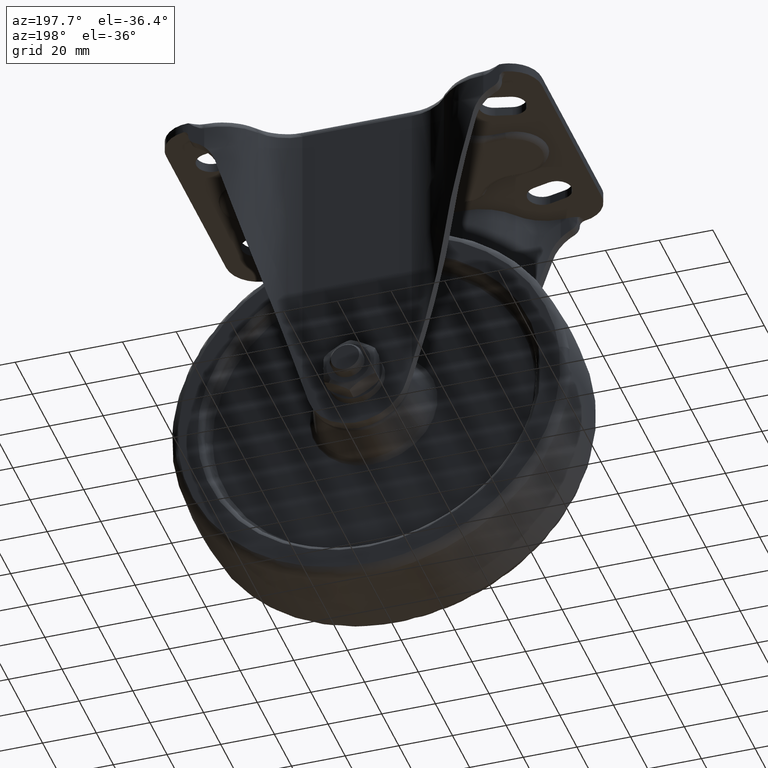
[diagram: clean part render]
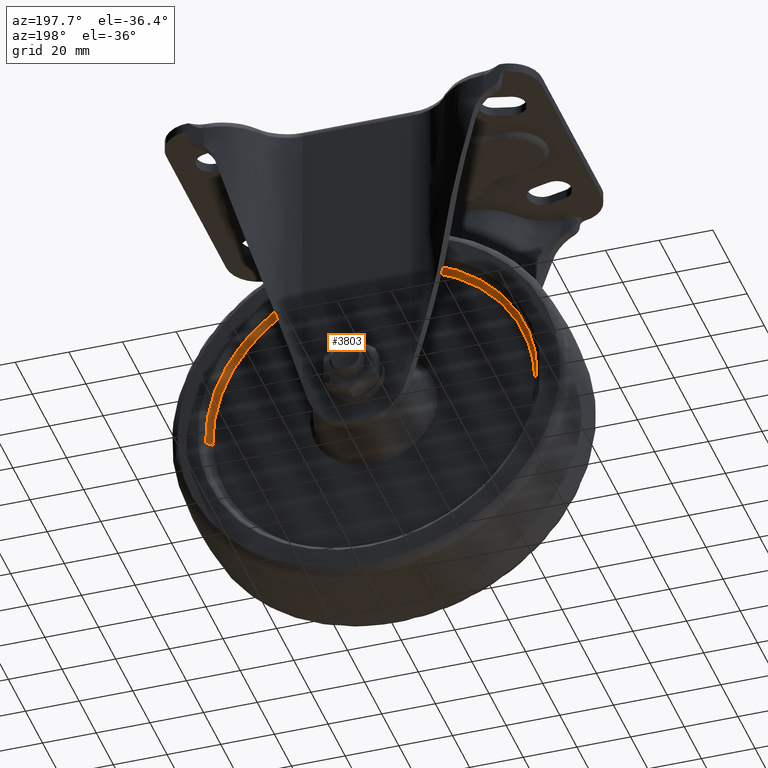
[diagram: same view with one face highlighted and labeled with its STEP entity id]
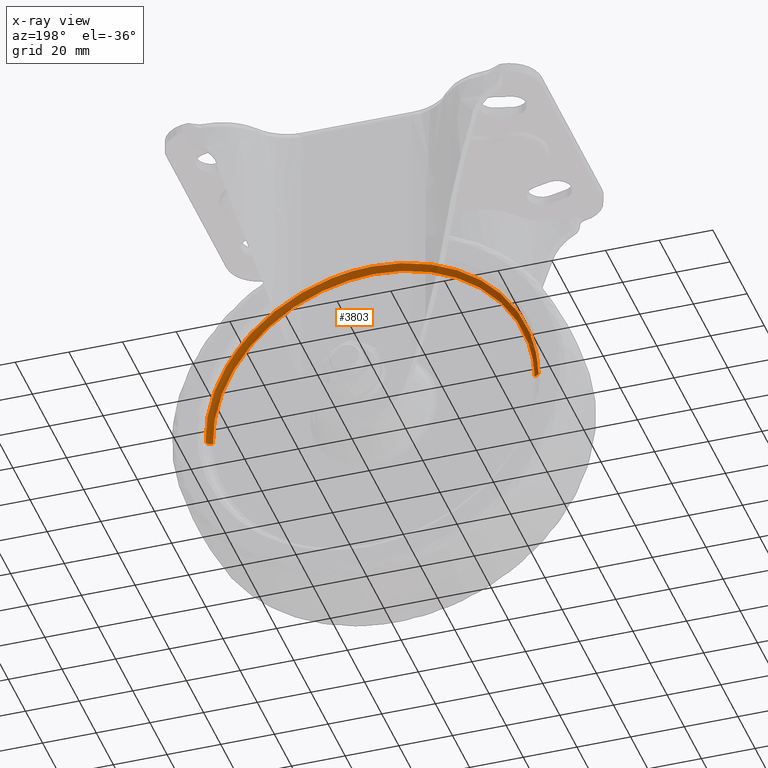
[diagram: x-ray of the same camera — body ghosted, the highlighted face saturated]
A machine part, auxiliary view. The second image highlights one B-rep face of the part: STEP entity #3803.
The next image is the same camera in x-ray: the body ghosted, the highlighted face saturated — about 3% of this face is hidden behind the body in this view.
In plain terms, the highlighted face is a freeform B-spline surface patch.
Its self-contained STEP definition (entity closure, byte-faithful):
#3506=CARTESIAN_POINT('',(44.973201963301541,13.999999999430560,42.677956427521544));
#3507=VERTEX_POINT('',#3506);
#3508=CARTESIAN_POINT('',(0.0,14.0,61.999970000000353));
#3509=VERTEX_POINT('',#3508);
#3510=CARTESIAN_POINT('',(44.973201963301541,13.999999999430559,42.677956427521529));
#3511=CARTESIAN_POINT('',(26.637297309651874,13.999999999766032,61.999970000000353));
#3512=CARTESIAN_POINT('',(0.0,14.0,61.999970000000353));
#3520=(BOUNDED_CURVE()B_SPLINE_CURVE(2,(#3510,#3511,#3512),.UNSPECIFIED.,.F.,.U.)B_SPLINE_CURVE_WITH_KNOTS((3,3),(0.371049520148539,0.500000000000000),.UNSPECIFIED.)CURVE()GEOMETRIC_REPRESENTATION_ITEM()RATIONAL_B_SPLINE_CURVE((0.853699661851557,0.848925115555066,1.0))REPRESENTATION_ITEM(''));
#3521=EDGE_CURVE('',#3507,#3509,#3520,.T.);
#3523=CARTESIAN_POINT('',(-61.980404740300358,13.999999998883110,1.558050540599163));
#3524=VERTEX_POINT('',#3523);
#3525=CARTESIAN_POINT('',(0.0,14.0,61.999970000000353));
#3526=CARTESIAN_POINT('',(-60.461013695470321,13.999999999441554,61.999970000000360));
#3527=CARTESIAN_POINT('',(-61.980404740300358,13.999999998883114,1.558050540599163));
#3535=(BOUNDED_CURVE()B_SPLINE_CURVE(2,(#3525,#3526,#3527),.UNSPECIFIED.,.F.,.U.)B_SPLINE_CURVE_WITH_KNOTS((3,3),(0.500000000000000,0.745579891769628),.UNSPECIFIED.)CURVE()GEOMETRIC_REPRESENTATION_ITEM()RATIONAL_B_SPLINE_CURVE((1.0,0.712285260094937,0.989826157681171))REPRESENTATION_ITEM(''));
#3536=EDGE_CURVE('',#3509,#3524,#3535,.T.);
#3589=CARTESIAN_POINT('',(61.980404740300358,13.999999998883110,-1.558080540598828));
#3590=VERTEX_POINT('',#3589);
#3591=CARTESIAN_POINT('',(61.980404740300365,13.999999998883110,-1.558080540598828));
#3592=CARTESIAN_POINT('',(61.999985000000187,13.999999998889955,-0.779170803175661));
#3593=CARTESIAN_POINT('',(61.999985000000187,13.999999998896969,-0.000014999999852));
#3594=CARTESIAN_POINT('',(61.999985000000187,13.999999999119762,24.735469315752223));
#3595=CARTESIAN_POINT('',(44.973201963301591,13.999999999430933,42.677956427521586));
#3603=(BOUNDED_CURVE()B_SPLINE_CURVE(2,(#3591,#3592,#3593,#3594,#3595),.UNSPECIFIED.,.F.,.U.)B_SPLINE_CURVE_WITH_KNOTS((3,2,3),(0.245579891769628,0.250000000000000,0.371049520148539),.UNSPECIFIED.)CURVE()GEOMETRIC_REPRESENTATION_ITEM()RATIONAL_B_SPLINE_CURVE((0.989826157681171,0.994821521091610,1.0,0.858181665631482,0.853699661851557))REPRESENTATION_ITEM(''));
#3604=EDGE_CURVE('',#3590,#3507,#3603,.T.);
#3671=CARTESIAN_POINT('',(-59.981036389527461,12.0,1.507790350903680));
#3672=VERTEX_POINT('',#3671);
#3690=CARTESIAN_POINT('',(59.981036389527461,12.0,-1.507820350903378));
#3691=VERTEX_POINT('',#3690);
#3705=CARTESIAN_POINT('',(61.980404740300358,13.999999998883112,-1.558080540598828));
#3706=CARTESIAN_POINT('',(61.980404739177636,12.000000027814881,-1.558080540816879));
#3707=CARTESIAN_POINT('',(59.981036389527461,12.000000000000005,-1.507820350903379));
#3715=(BOUNDED_CURVE()B_SPLINE_CURVE(2,(#3705,#3706,#3707),.UNSPECIFIED.,.F.,.U.)B_SPLINE_CURVE_WITH_KNOTS((3,3),(-1.723441281409801,-0.263586893321516),.UNSPECIFIED.)CURVE()GEOMETRIC_REPRESENTATION_ITEM()RATIONAL_B_SPLINE_CURVE((0.883897566936020,0.626638729877167,0.888510403898612))REPRESENTATION_ITEM(''));
#3716=EDGE_CURVE('',#3590,#3691,#3715,.T.);
#3721=CARTESIAN_POINT('',(-61.980404740300358,13.999999998883110,1.558050540599163));
#3722=CARTESIAN_POINT('',(-61.980404739177658,12.000000027814870,1.558050540817194));
#3723=CARTESIAN_POINT('',(-59.981036389527461,12.0,1.507790350903680));
#3731=(BOUNDED_CURVE()B_SPLINE_CURVE(2,(#3721,#3722,#3723),.UNSPECIFIED.,.F.,.U.)B_SPLINE_CURVE_WITH_KNOTS((3,3),(-1.723441281409802,-0.263586893321510),.UNSPECIFIED.)CURVE()GEOMETRIC_REPRESENTATION_ITEM()RATIONAL_B_SPLINE_CURVE((0.883897566936021,0.626638729877165,0.888510403898614))REPRESENTATION_ITEM(''));
#3732=EDGE_CURVE('',#3524,#3672,#3731,.T.);
#3737=CARTESIAN_POINT('',(61.931983882675361,14.139448369088914,-3.290592107392480));
#3738=CARTESIAN_POINT('',(61.953634560953226,14.139448369088919,-2.429320378025421));
#3739=CARTESIAN_POINT('',(63.533482115396886,14.139448369088925,60.417580670013663));
#3740=CARTESIAN_POINT('',(1.557943222691692,14.139448369088925,61.975523892705340));
#3741=CARTESIAN_POINT('',(-60.417595670013505,14.139448369088925,63.533467115397038));
#3742=CARTESIAN_POINT('',(-61.997443224449228,14.139448369088919,0.686566067673153));
#3743=CARTESIAN_POINT('',(-62.019093902719355,14.139448369088916,-0.174705661385992));
#3744=CARTESIAN_POINT('',(62.092166451935391,11.845328637014562,-3.299102945611532));
#3745=CARTESIAN_POINT('',(62.113873128117014,11.845328637014561,-2.435603599594852));
#3746=CARTESIAN_POINT('',(63.697806843288042,11.845328637014562,60.573846384370064));
#3747=CARTESIAN_POINT('',(1.561972729459063,11.845328637014561,62.135819113829122));
#3748=CARTESIAN_POINT('',(-60.573861384369906,11.845328637014562,63.697791843288172));
#3749=CARTESIAN_POINT('',(-62.157795099532990,11.845328637014562,0.688341859639280));
#3750=CARTESIAN_POINT('',(-62.179501775706868,11.845328637014561,-0.175157486068688));
#3751=CARTESIAN_POINT('',(59.800323143487127,12.004815298900104,-3.177332470136410));
#3752=CARTESIAN_POINT('',(59.821228618754063,12.004815298900104,-2.345705183207084));
#3753=CARTESIAN_POINT('',(61.346698793456575,12.004815298900102,58.338044240341077));
#3754=CARTESIAN_POINT('',(1.504319776557822,12.004815298900100,59.842364016898912));
#3755=CARTESIAN_POINT('',(-58.338059240340925,12.004815298900102,61.346683793456727));
#3756=CARTESIAN_POINT('',(-59.863529415035806,12.004815298900098,0.662934370212903));
#3757=CARTESIAN_POINT('',(-59.884434890295267,12.004815298900105,-0.168692916419108));
#3765=(BOUNDED_SURFACE()B_SPLINE_SURFACE(2,2,((#3737,#3744,#3751),(#3738,#3745,#3752),(#3739,#3746,#3753),(#3740,#3747,#3754),(#3741,#3748,#3755),(#3742,#3749,#3756),(#3743,#3750,#3757)),.UNSPECIFIED.,.F.,.F.,.U.)B_SPLINE_SURFACE_WITH_KNOTS((3,1,2,1,3),(3,3),(0.0,2.054337482050501,104.771211550626210,207.488085619201800,209.542423100504890),(0.0,3.645454279371224),.UNSPECIFIED.)GEOMETRIC_REPRESENTATION_ITEM()RATIONAL_B_SPLINE_SURFACE(((0.921564716014221,0.606435493454621,0.926697837809980),(0.916228828700513,0.602924213780089,0.921332229567298),(0.644098575789570,0.423848950436964,0.647686209279166),(0.910892941386805,0.599412934105556,0.915966621324616),(0.644098575789570,0.423848950436964,0.647686209279166),(0.916228828698572,0.602924213778811,0.921332229565346),(0.921564716010339,0.606435493452066,0.926697837806076)))REPRESENTATION_ITEM('')SURFACE());
#3766=CARTESIAN_POINT('',(0.0,12.0,59.999970000000353));
#3767=VERTEX_POINT('',#3766);
#3768=CARTESIAN_POINT('',(0.0,12.0,59.999970000000353));
#3769=CARTESIAN_POINT('',(-58.510657956531780,12.0,59.999970000349862));
#3770=CARTESIAN_POINT('',(-59.981036389527461,11.999999999999998,1.507790350903680));
#3778=(BOUNDED_CURVE()B_SPLINE_CURVE(2,(#3768,#3769,#3770),.UNSPECIFIED.,.F.,.U.)B_SPLINE_CURVE_WITH_KNOTS((3,3),(0.500000000000000,0.745579891768186),.UNSPECIFIED.)CURVE()GEOMETRIC_REPRESENTATION_ITEM()RATIONAL_B_SPLINE_CURVE((1.0,0.712285260096626,0.989826157677912))REPRESENTATION_ITEM(''));
#3779=EDGE_CURVE('',#3767,#3672,#3778,.T.);
#3780=ORIENTED_EDGE('',*,*,#3779,.T.);
#3781=ORIENTED_EDGE('',*,*,#3732,.F.);
#3782=ORIENTED_EDGE('',*,*,#3536,.F.);
#3783=ORIENTED_EDGE('',*,*,#3521,.F.);
#3784=ORIENTED_EDGE('',*,*,#3604,.F.);
#3785=ORIENTED_EDGE('',*,*,#3716,.T.);
#3786=CARTESIAN_POINT('',(59.981036389527461,11.999999999999998,-1.507820350903379));
#3787=CARTESIAN_POINT('',(59.999985027635880,12.000000000000007,-0.754036739869844));
#3788=CARTESIAN_POINT('',(59.999985027461172,12.0,-0.000015000690168));
#3789=CARTESIAN_POINT('',(59.999985013558138,12.0,59.999969999659527));
#3790=CARTESIAN_POINT('',(0.0,12.0,59.999970000000353));
#3798=(BOUNDED_CURVE()B_SPLINE_CURVE(2,(#3786,#3787,#3788,#3789,#3790),.UNSPECIFIED.,.F.,.U.)B_SPLINE_CURVE_WITH_KNOTS((3,2,3),(0.245579891768186,0.250000000000000,0.500000000000000),.UNSPECIFIED.)CURVE()GEOMETRIC_REPRESENTATION_ITEM()RATIONAL_B_SPLINE_CURVE((0.989826157677912,0.994821521089921,1.0,0.707106781186547,1.0))REPRESENTATION_ITEM(''));
#3799=EDGE_CURVE('',#3691,#3767,#3798,.T.);
#3800=ORIENTED_EDGE('',*,*,#3799,.T.);
#3801=EDGE_LOOP('',(#3780,#3781,#3782,#3783,#3784,#3785,#3800));
#3802=FACE_OUTER_BOUND('',#3801,.T.);
#3803=ADVANCED_FACE('',(#3802),#3765,.F.);